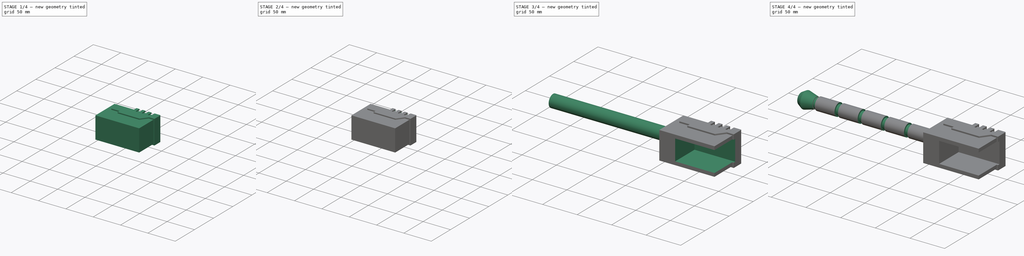
[diagram: build sequence overview — one tinted view per stage of 4, left to right]
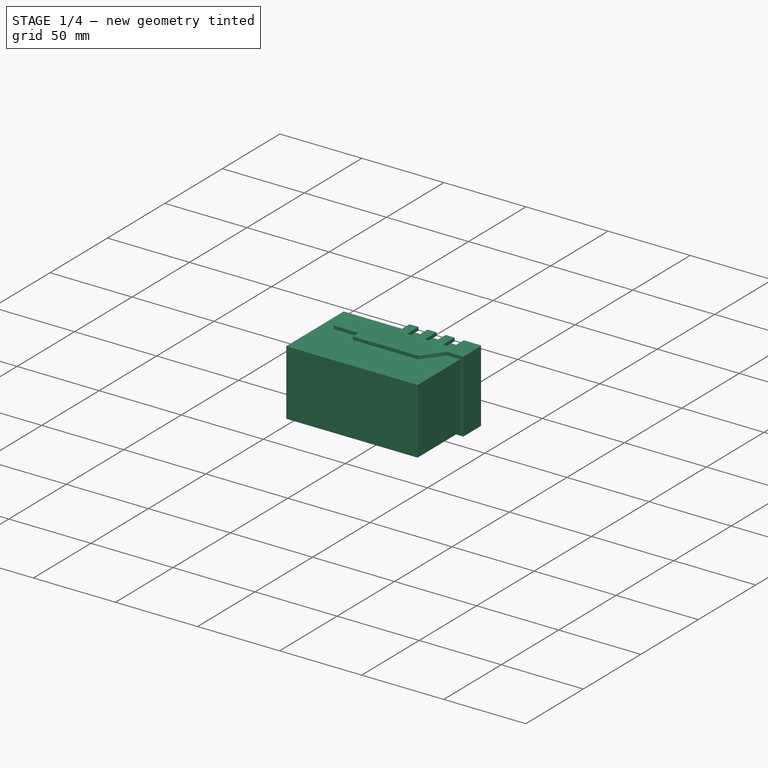
[diagram: stage 1 of 4 — iso view after this stage's code; geometry added in this stage tinted green]
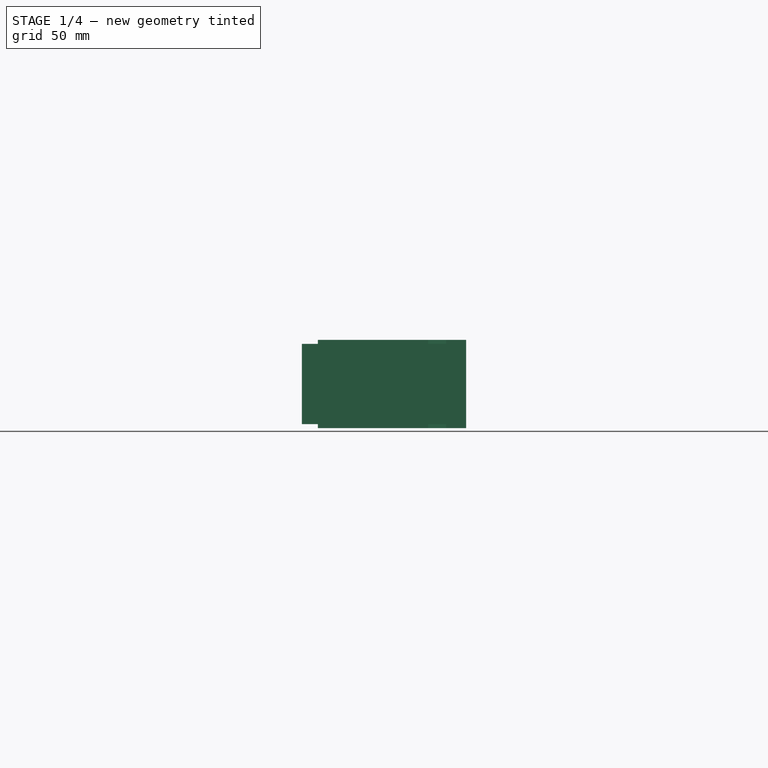
[diagram: stage 1 of 4 — front view after this stage's code; geometry added in this stage tinted green]
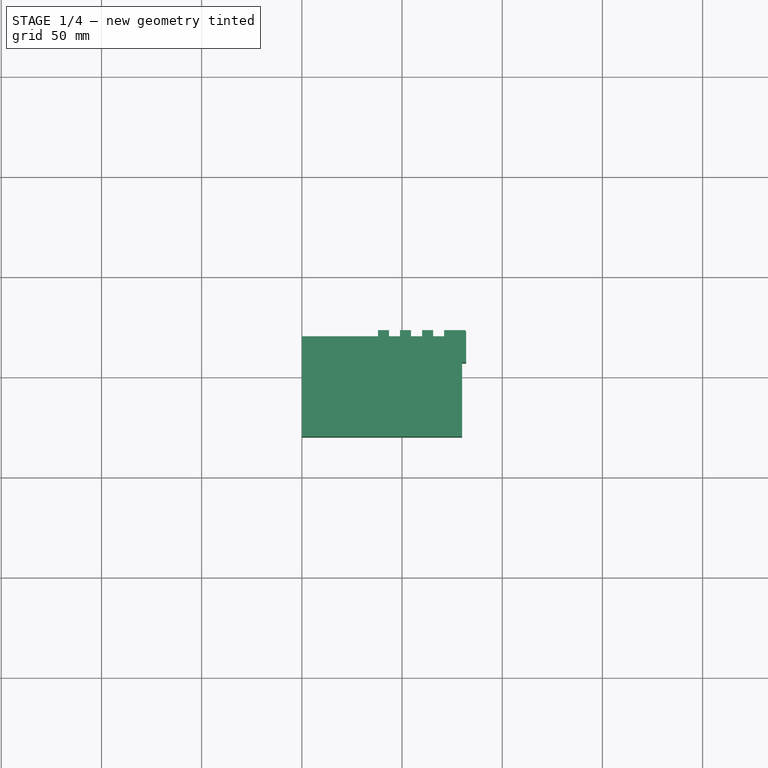
[diagram: stage 1 of 4 — top view after this stage's code; geometry added in this stage tinted green]
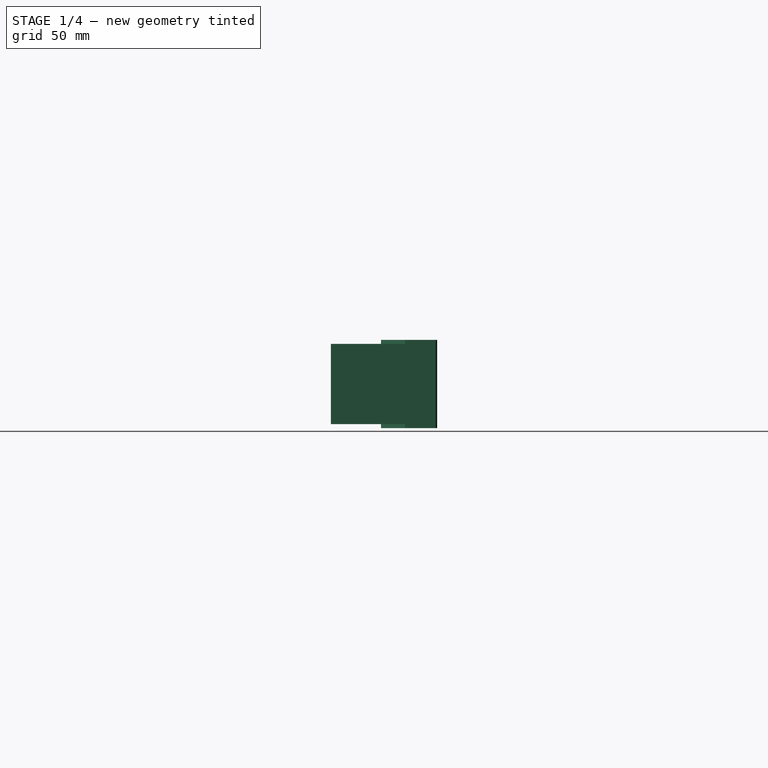
[diagram: stage 1 of 4 — right view after this stage's code; geometry added in this stage tinted green]
FCSTD DOCUMENT  (FreeCAD 1.0R39319 (Git))
Label: csw_attemp2
License: All rights reserved
LicenseURL: https://en.wikipedia.org/wiki/All_rights_reserved
objects: Sketcher::SketchObject×6, PartDesign::Pad×4, PartDesign::AdditiveLoft×4, PartDesign::Body×2, PartDesign::Revolution×1, PartDesign::Groove×1, PartDesign::LinearPattern×1, Spreadsheet::Sheet×1, PartDesign::Fillet×1, PartDesign::Mirrored×1, PartDesign::Pocket×1
note: 54 computed .brp shape members not serialized (recipe doc carries the construction recipe); baked Part::Feature solids carry a one-line shape summary decoded from their .brp

FEATURE [PartDesign::Body] Body  label="handle"
  AllowCompound = false
  Group = -> [Sketch,Revolution,Sketch001,Groove,LinearPattern,Sketch002,Pad,Pad001,Fillet]
  Origin = -> Origin
  Tip = -> Fillet
FEATURE [Sketcher::SketchObject] Sketch003
  ArcFitTolerance = 1e-06
  AttachmentSupport = -> [XY_Plane001]
  FullyConstrained = true
  MakeInternals = false
  MapMode = 5
  sketch-geometry (4):
    g0: LineSegment StartX=0 StartY=20 StartZ=0 EndX=0 EndY=-30 EndZ=0
    g1: LineSegment StartX=0 StartY=-30 StartZ=0 EndX=80 EndY=-30 EndZ=0
    g2: LineSegment StartX=80 StartY=-30 StartZ=0 EndX=80 EndY=20 EndZ=0
    g3: LineSegment StartX=80 StartY=20 StartZ=0 EndX=0 EndY=20 EndZ=0
  constraints (12):
    c: Coincident(g0,g1)
    c: Coincident(g1,g2)
    c: Coincident(g2,g3)
    c: Coincident(g3,g0)
    c: Vertical(g0)
    c: Vertical(g2)
    c: Horizontal(g1)
    c: Horizontal(g3)
    c: PointOnObject(g0,g-2)
    c: DistanceX(g3,g3) = 80
    c: DistanceY(g2,g2) = 50
    c: Distance(g-1,g0) = 20
FEATURE [PartDesign::Pad] Pad002
  Direction = (0,0,1)
  Length = 40
  Length2 = 10
  Midplane = true
  Profile = -> Sketch003
  ReferenceAxis = -> Sketch003 [N_Axis]
  Refine = true
  Suppressed = false
  Type = 0
FEATURE [Sketcher::SketchObject] Sketch004
  ArcFitTolerance = 1e-06
  AttachmentSupport = -> [Pad002]
  ExternalGeometry = -> [Pad002]
  FullyConstrained = true
  MakeInternals = false
  MapMode = 5
  Placement = pos=(0,0,20) rot=(0,0,1;0rad)
  sketch-geometry (24):
    g0: LineSegment StartX=8 StartY=0 StartZ=0 EndX=8 EndY=13 EndZ=0
    g1: LineSegment StartX=8 StartY=13 StartZ=0 EndX=38 EndY=13 EndZ=0
    g2: LineSegment StartX=38 StartY=13 StartZ=0 EndX=38 EndY=23 EndZ=0
    g3: LineSegment StartX=38 StartY=23 StartZ=0 EndX=43.5 EndY=23 EndZ=0
    g4: LineSegment StartX=43.5 StartY=23 StartZ=0 EndX=43.5 EndY=13 EndZ=0
    g5: LineSegment StartX=43.5 StartY=13 StartZ=0 EndX=49 EndY=13 EndZ=0
    g6: LineSegment StartX=49 StartY=13 StartZ=0 EndX=49 EndY=23 EndZ=0
    g7: LineSegment StartX=49 StartY=23 StartZ=0 EndX=54.5 EndY=23 EndZ=0
    g8: LineSegment StartX=54.5 StartY=23 StartZ=0 EndX=54.5 EndY=13 EndZ=0
    g9: LineSegment StartX=54.5 StartY=13 StartZ=0 EndX=60 EndY=13 EndZ=0
    g10: LineSegment StartX=60 StartY=13 StartZ=0 EndX=60 EndY=23 EndZ=0
    g11: LineSegment StartX=60 StartY=23 StartZ=0 EndX=65.5 EndY=23 EndZ=0
    g12: LineSegment StartX=65.5 StartY=23 StartZ=0 EndX=65.5 EndY=13 EndZ=0
    g13: LineSegment StartX=65.5 StartY=13 StartZ=0 EndX=71 EndY=13 EndZ=0
    g14: LineSegment StartX=71 StartY=13 StartZ=0 EndX=71 EndY=23 EndZ=0
    g15: LineSegment StartX=71 StartY=23 StartZ=0 EndX=81 EndY=23 EndZ=0
    g16: LineSegment StartX=82 StartY=22 StartZ=0 EndX=82 EndY=7 EndZ=0
    g17: LineSegment StartX=82 StartY=7 StartZ=0 EndX=72 EndY=7 EndZ=0
    g18: LineSegment StartX=72 StartY=7 StartZ=0 EndX=63 EndY=-5 EndZ=0
    g19: LineSegment StartX=63 StartY=-5 StartZ=0 EndX=23 EndY=-5 EndZ=0
    g20: LineSegment StartX=23 StartY=-5 StartZ=0 EndX=23 EndY=0 EndZ=0
    g21: LineSegment StartX=23 StartY=0 StartZ=0 EndX=8 EndY=0 EndZ=0
    g22: ArcOfCircle CenterX=81 CenterY=22 CenterZ=0 NormalX=0 NormalY=0 NormalZ=1 AngleXU=0 Radius=1 StartAngle=-9e-16 EndAngle=1.5708
    g23: GeomPoint [constr] X=82 Y=23 Z=0
  constraints (70):
    c: PointOnObject(g0,g-1)
    c: Vertical(g0)
    c: Coincident(g0,g1)
    c: Horizontal(g1)
    c: Coincident(g1,g2)
    c: Vertical(g2)
    c: Coincident(g2,g3)
    c: Horizontal(g3)
    c: Coincident(g3,g4)
    c: Vertical(g4)
    c: Coincident(g4,g5)
    c: Coincident(g5,g6)
    c: Vertical(g6)
    c: Coincident(g6,g7)
    c: Horizontal(g7)
    c: Coincident(g7,g8)
    c: Coincident(g8,g9)
    c: Horizontal(g9)
    c: Coincident(g9,g10)
    c: Vertical(g10)
    c: Coincident(g10,g11)
    c: Horizontal(g11)
    c: Coincident(g11,g12)
    c: Coincident(g12,g13)
    c: Horizontal(g13)
    c: Coincident(g13,g14)
    c: Coincident(g14,g15)
    c: Horizontal(g15)
    c: Vertical(g16)
    c: Coincident(g16,g17)
    c: Horizontal(g17)
    c: Coincident(g17,g18)
    c: Coincident(g18,g19)
    c: Horizontal(g19)
    c: Coincident(g19,g20)
    c: PointOnObject(g20,g-1)
    c: Vertical(g20)
    c: Coincident(g20,g21)
    c: Coincident(g21,g0)
    c: Vertical(g8)
    c: Vertical(g12)
    c: Vertical(g14)
    c: Horizontal(g5)
    c: Equal(g2,g4)
    c: Equal(g4,g6)
    c: Equal(g6,g8)
    c: Equal(g8,g10)
    c: Equal(g10,g12)
    c: Equal(g12,g14)
    c: DistanceY(g2,g2) = 10
    c: DistanceX(g3,g3) = 5.5
    c: Equal(g3,g5)
    c: Equal(g5,g7)
    c: Equal(g7,g9)
    c: Equal(g9,g11)
    c: Equal(g11,g13)
    c: DistanceX(g-3,g23) = 2
    c: Distance(g15,g-3) = 3
    c: DistanceY(g16,g-3) = 13
    c: DistanceX(g17,g17) = 10
    c: DistanceY(g18,g-3) = 25
    c: Distance(g18,g18) = 15
    c: DistanceX(g19,g19) = 40
    c: DistanceX(g21,g21) = 15
    c: DistanceX(g1,g1) = 30
    c: PointOnObject(g23,g15)
    c: PointOnObject(g23,g16)
    c: Tangent(g15,g22) = 1.5708
    c: Tangent(g16,g22) = 1.5708
    c: Radius(g22) = 1
FEATURE [PartDesign::Pad] Pad003
  BaseFeature = -> Pad002
  Direction = (0,0,1)
  Length = 2
  Length2 = 10
  Profile = -> Sketch004
  ReferenceAxis = -> Sketch004 [N_Axis]
  Refine = true
  Suppressed = false
  Type = 0
FEATURE [PartDesign::Mirrored] Mirrored
  BaseFeature = -> Pad003
  MirrorPlane = -> XY_Plane001
  Originals = -> [Pad003]
  Refine = true
  Suppressed = false
  TransformMode = 0
FEATURE [PartDesign::AdditiveLoft] AdditiveLoft
  BaseFeature = -> Mirrored
  Closed = false
  Profile = -> Mirrored [Face7]
  Refine = true
  Ruled = false
  Sections = -> [Mirrored]
  Suppressed = false
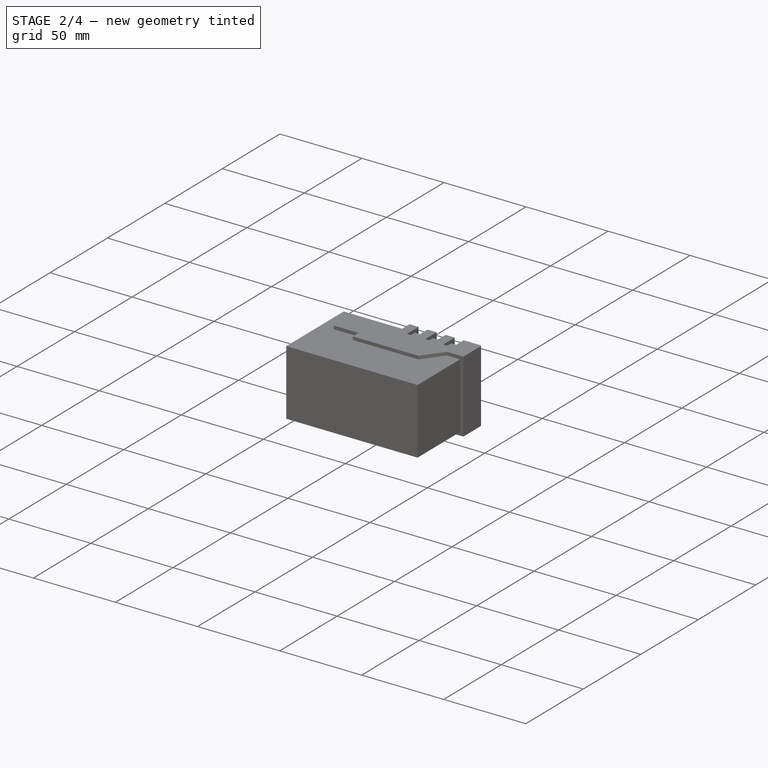
[diagram: stage 2 of 4 — iso view after this stage's code; geometry added in this stage tinted green]
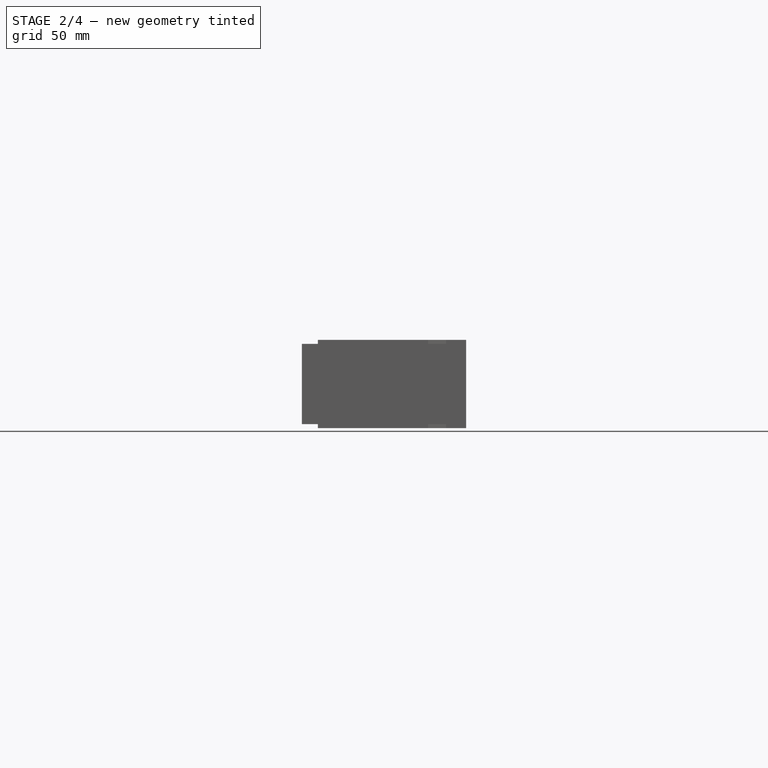
[diagram: stage 2 of 4 — front view after this stage's code; geometry added in this stage tinted green]
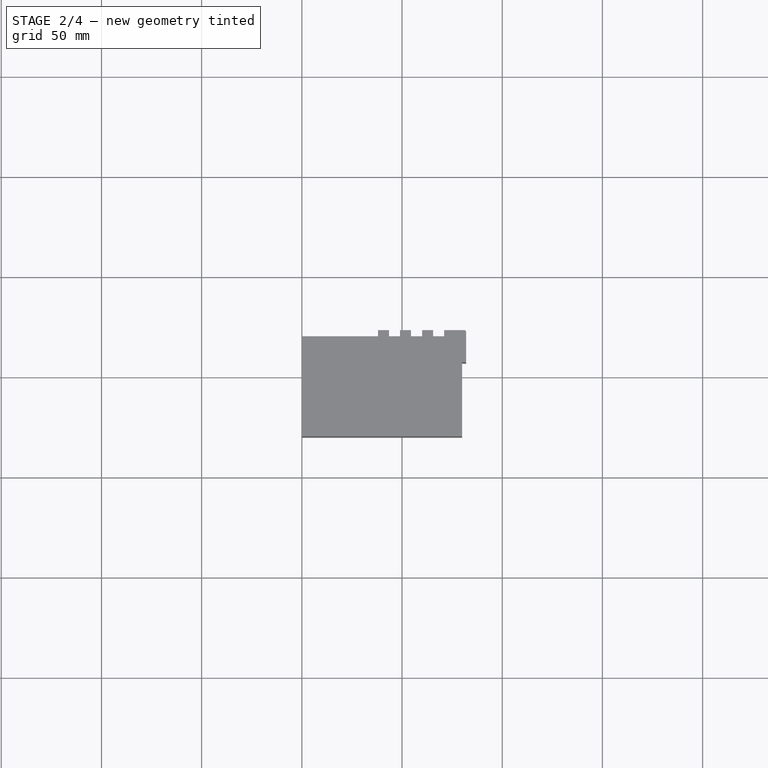
[diagram: stage 2 of 4 — top view after this stage's code; geometry added in this stage tinted green]
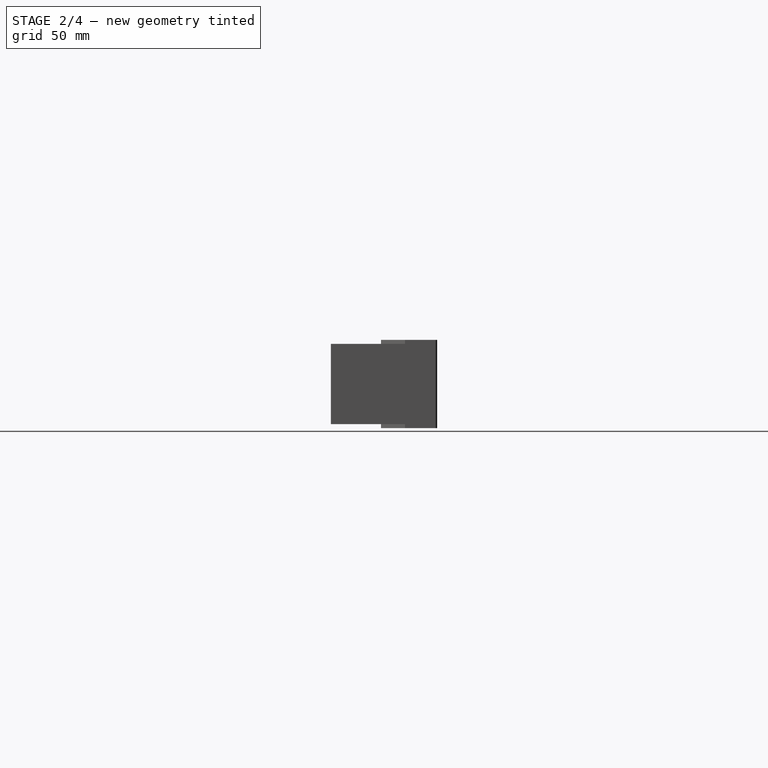
[diagram: stage 2 of 4 — right view after this stage's code; geometry added in this stage tinted green]
FEATURE [PartDesign::AdditiveLoft] AdditiveLoft001
  BaseFeature = -> AdditiveLoft
  Closed = false
  Profile = -> AdditiveLoft [Face16]
  Refine = true
  Ruled = false
  Sections = -> [AdditiveLoft]
  Suppressed = false
FEATURE [PartDesign::AdditiveLoft] AdditiveLoft002
  BaseFeature = -> AdditiveLoft001
  Closed = false
  Profile = -> AdditiveLoft001 [Face12]
  Refine = true
  Ruled = false
  Sections = -> [AdditiveLoft001]
  Suppressed = false
FEATURE [PartDesign::AdditiveLoft] AdditiveLoft003
  BaseFeature = -> AdditiveLoft002
  Closed = false
  Profile = -> AdditiveLoft002 [Face8]
  Refine = true
  Ruled = false
  Sections = -> [AdditiveLoft002]
  Suppressed = false
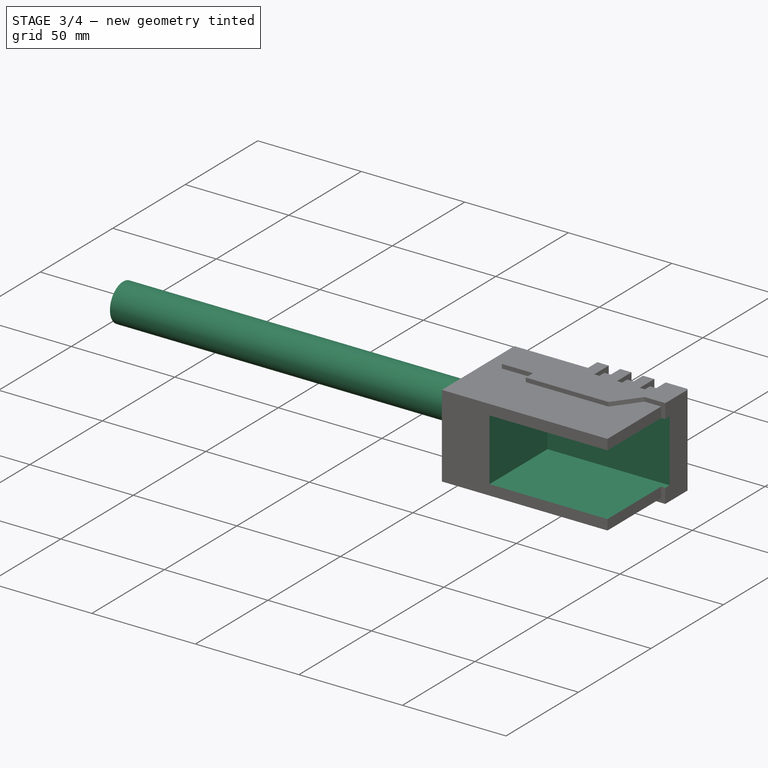
[diagram: stage 3 of 4 — iso view after this stage's code; geometry added in this stage tinted green]
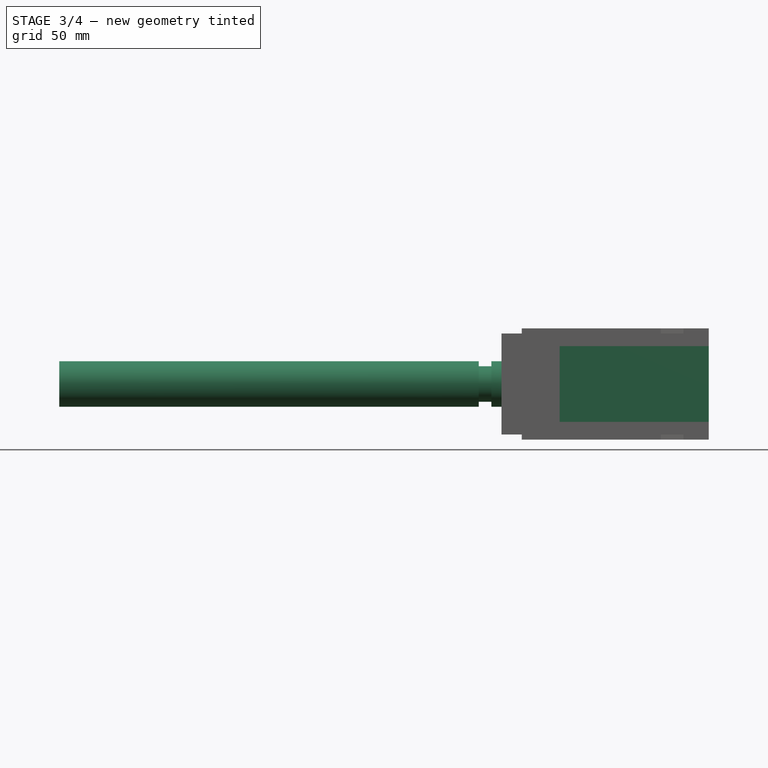
[diagram: stage 3 of 4 — front view after this stage's code; geometry added in this stage tinted green]
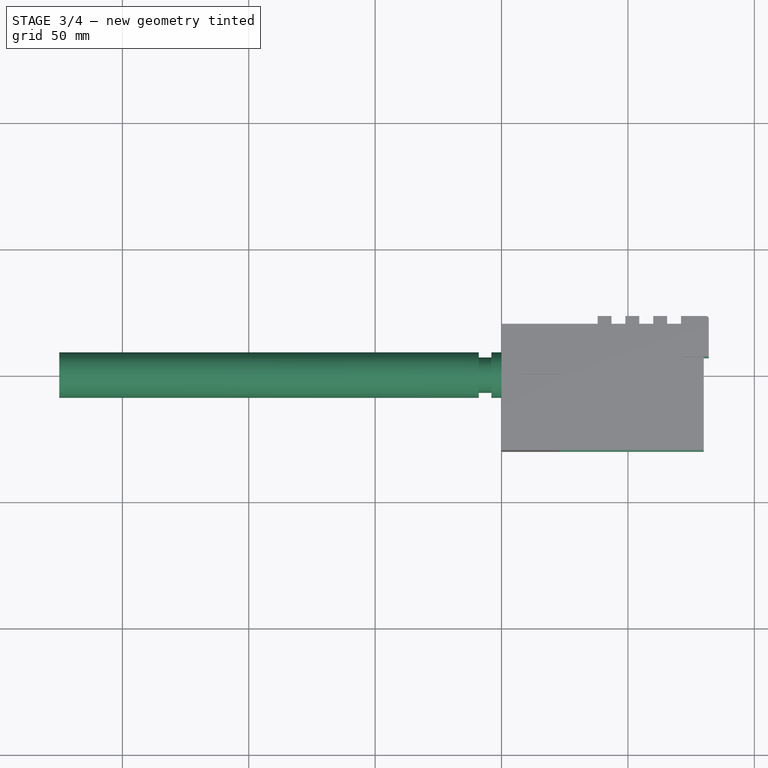
[diagram: stage 3 of 4 — top view after this stage's code; geometry added in this stage tinted green]
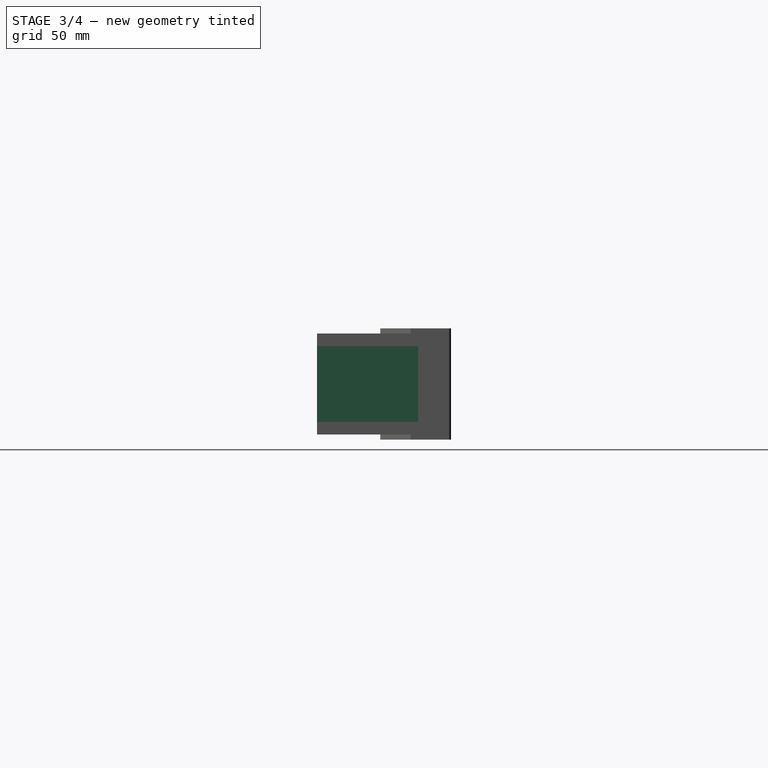
[diagram: stage 3 of 4 — right view after this stage's code; geometry added in this stage tinted green]
FEATURE [Sketcher::SketchObject] Sketch
  ArcFitTolerance = 1e-06
  AttachmentSupport = -> [XY_Plane]
  FullyConstrained = true
  MakeInternals = false
  MapMode = 5
  expr: .Constraints.handle_length = <<Spreadsheet>>.handle_length
  expr: .Constraints.handle_radius = <<Spreadsheet>>.handle_radius
  sketch-geometry (4):
    g0: LineSegment StartX=0 StartY=0 StartZ=0 EndX=0 EndY=9 EndZ=0
    g1: LineSegment StartX=0 StartY=9 StartZ=0 EndX=-175 EndY=9 EndZ=0
    g2: LineSegment StartX=-175 StartY=9 StartZ=0 EndX=-175 EndY=0 EndZ=0
    g3: LineSegment StartX=-175 StartY=0 StartZ=0 EndX=0 EndY=0 EndZ=0
  constraints (11):
    c: Coincident(g0,g1)
    c: Coincident(g1,g2)
    c: Coincident(g2,g3)
    c: Coincident(g3,g0)
    c: Vertical(g0)
    c: Vertical(g2)
    c: Horizontal(g1)
    c: Horizontal(g3)
    c: Coincident(g0,g-1)
    c: DistanceX(g1,g1) = 175  'handle_length'
    c: DistanceY(g0,g0) = 9  'handle_radius'
FEATURE [PartDesign::Revolution] Revolution
  Angle = 360
  Angle2 = 60
  Axis = (1,0,0)
  Base = (0,0,0)
  Profile = -> Sketch
  ReferenceAxis = -> Sketch [H_Axis]
  Refine = true
  Suppressed = false
  Type = 0
FEATURE [Sketcher::SketchObject] Sketch001
  ArcFitTolerance = 1e-06
  AttachmentSupport = -> [XZ_Plane]
  FullyConstrained = true
  MakeInternals = false
  MapMode = 5
  Placement = pos=(0,0,0) rot=(1,0,0;1.5708rad)
  expr: Constraints[10] = <<Spreadsheet>>.handle_groove_height
  expr: Constraints[11] = <<Spreadsheet>>.handle_radius - <<Spreadsheet>>.handle_groove_height
  expr: Constraints[8] = <<Spreadsheet>>.handle_grove_from_base_x
  expr: Constraints[9] = <<Spreadsheet>>.handle_groove_width
  sketch-geometry (4):
    g0: LineSegment StartX=-9.02778 StartY=9 StartZ=0 EndX=-9.02778 EndY=7 EndZ=0
    g1: LineSegment StartX=-9.02778 StartY=7 StartZ=0 EndX=-4.02778 EndY=7 EndZ=0
    g2: LineSegment StartX=-4.02778 StartY=7 StartZ=0 EndX=-4.02778 EndY=9 EndZ=0
    g3: LineSegment StartX=-4.02778 StartY=9 StartZ=0 EndX=-9.02778 EndY=9 EndZ=0
  constraints (12):
    c: Coincident(g0,g1)
    c: Coincident(g1,g2)
    c: Coincident(g2,g3)
    c: Coincident(g3,g0)
    c: Vertical(g0)
    c: Vertical(g2)
    c: Horizontal(g1)
    c: Horizontal(g3)
    c: DistanceX(g1,g-1) = 4.02778
    c: DistanceX(g3,g3) = 5
    c: DistanceY(g2,g2) = 2
    c: DistanceY(g-1,g1) = 7
FEATURE [PartDesign::Groove] Groove
  Angle = 360
  Angle2 = 60
  Axis = (1,0,0)
  Base = (0,0,0)
  BaseFeature = -> Revolution
  Profile = -> Sketch001
  ReferenceAxis = -> Sketch001 [H_Axis]
  Refine = true
  Reversed = true
  Suppressed = false
  Type = 0
FEATURE [Sketcher::SketchObject] Sketch005
  ArcFitTolerance = 1e-06
  AttachmentSupport = -> [AdditiveLoft003]
  ExternalGeometry = -> [AdditiveLoft003]
  FullyConstrained = true
  MakeInternals = false
  MapMode = 5
  Placement = pos=(0,-30,0) rot=(1,0,0;1.5708rad)
  sketch-geometry (5):
    g0: LineSegment [constr] StartX=23 StartY=20 StartZ=0 EndX=23 EndY=-20 EndZ=0
    g1: LineSegment StartX=23 StartY=15 StartZ=0 EndX=23 EndY=-15 EndZ=0
    g2: LineSegment StartX=23 StartY=-15 StartZ=0 EndX=88 EndY=-15 EndZ=0
    g3: LineSegment StartX=88 StartY=-15 StartZ=0 EndX=88 EndY=15 EndZ=0
    g4: LineSegment StartX=88 StartY=15 StartZ=0 EndX=23 EndY=15 EndZ=0
  constraints (14):
    c: Coincident(g0,g-3)
    c: Coincident(g0,g-4)
    c: Coincident(g1,g2)
    c: Coincident(g2,g3)
    c: Coincident(g3,g4)
    c: Coincident(g4,g1)
    c: Vertical(g1)
    c: Vertical(g3)
    c: Horizontal(g2)
    c: Horizontal(g4)
    c: PointOnObject(g1,g0)
    c: DistanceX(g4,g4) = 65
    c: DistanceY(g1,g1) = 30
    c: DistanceY(g-1,g1) = 15
FEATURE [PartDesign::Pocket] Pocket
  BaseFeature = -> AdditiveLoft003
  Direction = (0,1,-2e-16)
  Length = 40
  Length2 = 5
  Profile = -> Sketch005
  ReferenceAxis = -> Sketch005 [N_Axis]
  Refine = true
  Suppressed = false
  Type = 0
FEATURE [PartDesign::Body] Body001  label="base"
  AllowCompound = false
  Group = -> [Sketch003,Pad002,Sketch004,Pad003,Mirrored,AdditiveLoft,AdditiveLoft001,AdditiveLoft002,AdditiveLoft003,Sketch005,Pocket]
  Origin = -> Origin001
  Tip = -> Pocket
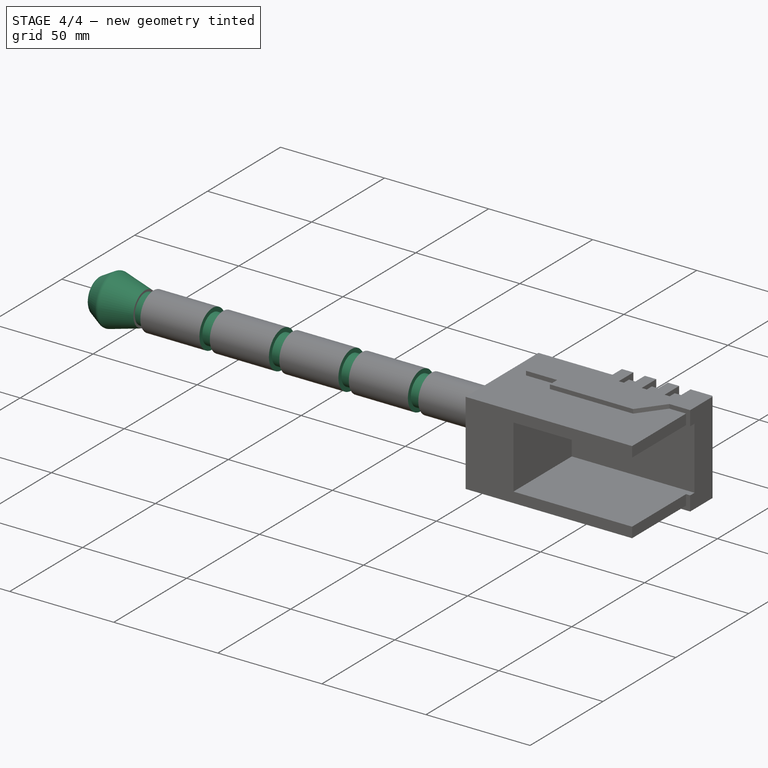
[diagram: stage 4 of 4 — iso view after this stage's code; geometry added in this stage tinted green]
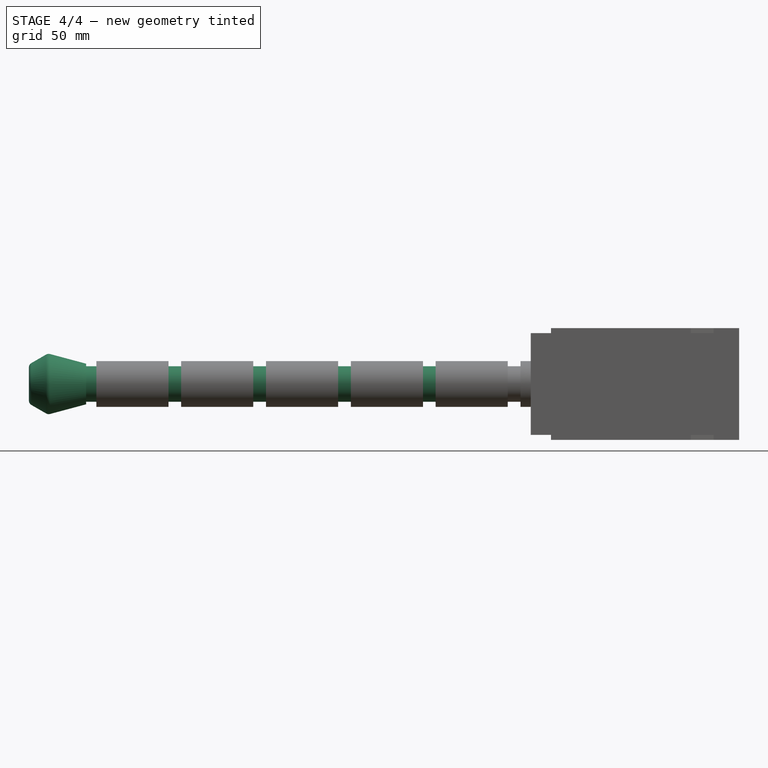
[diagram: stage 4 of 4 — front view after this stage's code; geometry added in this stage tinted green]
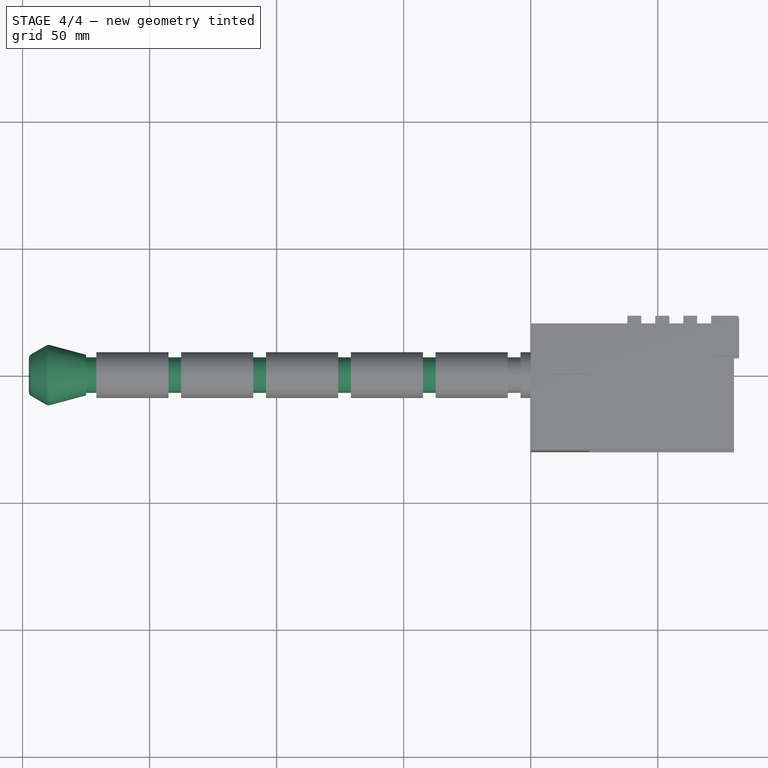
[diagram: stage 4 of 4 — top view after this stage's code; geometry added in this stage tinted green]
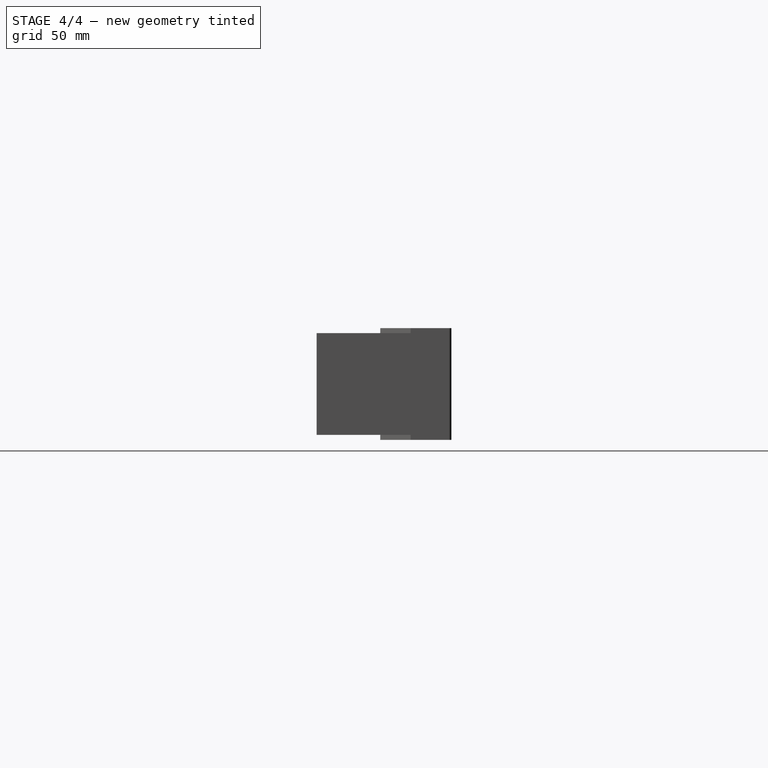
[diagram: stage 4 of 4 — right view after this stage's code; geometry added in this stage tinted green]
FEATURE [PartDesign::LinearPattern] LinearPattern
  BaseFeature = -> Groove
  Direction = -> X_Axis
  Length = 166.944
  Mode = 0
  Occurrences = 6
  Offset = 33.3889
  Originals = -> [Groove]
  Refine = true
  Reversed = true
  Suppressed = false
  TransformMode = 0
  expr: Length = <<Spreadsheet>>.handle_length - <<Spreadsheet>>.handle_grove_from_base_x * 2
  expr: Occurrences = <<Spreadsheet>>.num_of_grooves
FEATURE [Spreadsheet::Sheet] Spreadsheet
  cells = A1='handle_length; B1(handle_length)==175 mm; A2='handle_radius; B2(handle_radius)==9 mm; A3='handle_groove_height; B3(handle_groove_height)==2 mm; A4='handle_groove_width; B4(handle_groove_width)==5 mm; A5='num_of_grooves; B5(num_of_grooves)=6; A6='handle_grove_from_base_x; B6(handle_grove_from_base_x)==(handle_length / num_of_grooves - handle_groove_width) / num_of_grooves; A7='pommel_base_diameter; B7(pommel_base_diameter)==16 mm; A8='pommel_tapper_to_center; B8(pommel_tapper_to_center)==15 °; A9='pommel_midway; B9(pommel_midway)==15 mm; A10='pommel_fillet; B10(pommel_fillet)==2 mm
FEATURE [Sketcher::SketchObject] Sketch002
  ArcFitTolerance = 1e-06
  AttachmentSupport = -> [LinearPattern]
  FullyConstrained = true
  MakeInternals = false
  MapMode = 5
  Placement = pos=(-175,0,0) rot=(0.57735,-0.57735,-0.57735;2.0944rad)
  expr: Constraints[1] = <<Spreadsheet>>.pommel_base_diameter
  sketch-geometry (1):
    g0: Circle CenterX=0 CenterY=0 CenterZ=0 NormalX=0 NormalY=0 NormalZ=1 AngleXU=0 Radius=8
  constraints (2):
    c: Coincident(g0,g-1)
    c: Diameter(g0) = 16
FEATURE [PartDesign::Pad] Pad
  BaseFeature = -> LinearPattern
  Direction = (-1,0,0)
  Length = 15
  Length2 = 10
  Profile = -> Sketch002
  ReferenceAxis = -> Sketch002 [N_Axis]
  Refine = true
  Suppressed = false
  TaperAngle = 15
  Type = 0
  expr: Length = <<Spreadsheet>>.pommel_midway
  expr: TaperAngle = <<Spreadsheet>>.pommel_tapper_to_center
FEATURE [PartDesign::Pad] Pad001
  BaseFeature = -> Pad
  Direction = (-1,0,0)
  Length = 7.5
  Length2 = 10
  Profile = -> Pad [Face27]
  Refine = true
  Suppressed = false
  TaperAngle = -30
  Type = 0
  expr: Length = <<Spreadsheet>>.pommel_midway / 2
  expr: TaperAngle = -<<Spreadsheet>>.pommel_tapper_to_center * 2
FEATURE [PartDesign::Fillet] Fillet
  Base = -> Pad001 [Edge52,Edge50]
  BaseFeature = -> Pad001
  Radius = 2
  Refine = true
  SupportTransform = false
  Suppressed = false
  UseAllEdges = false
  expr: Radius = <<Spreadsheet>>.pommel_fillet
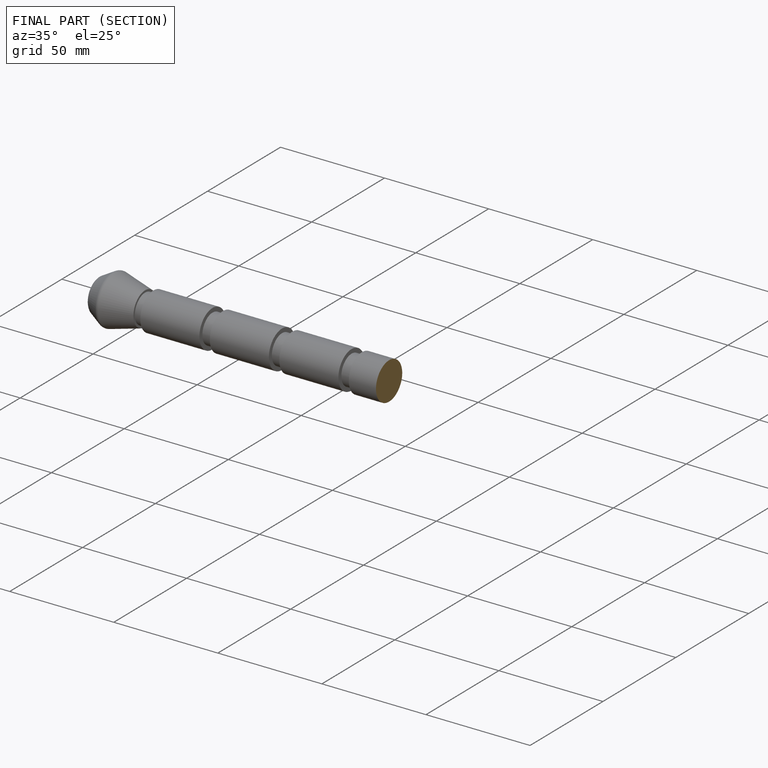
[diagram: finished part — half-section view (interior)]
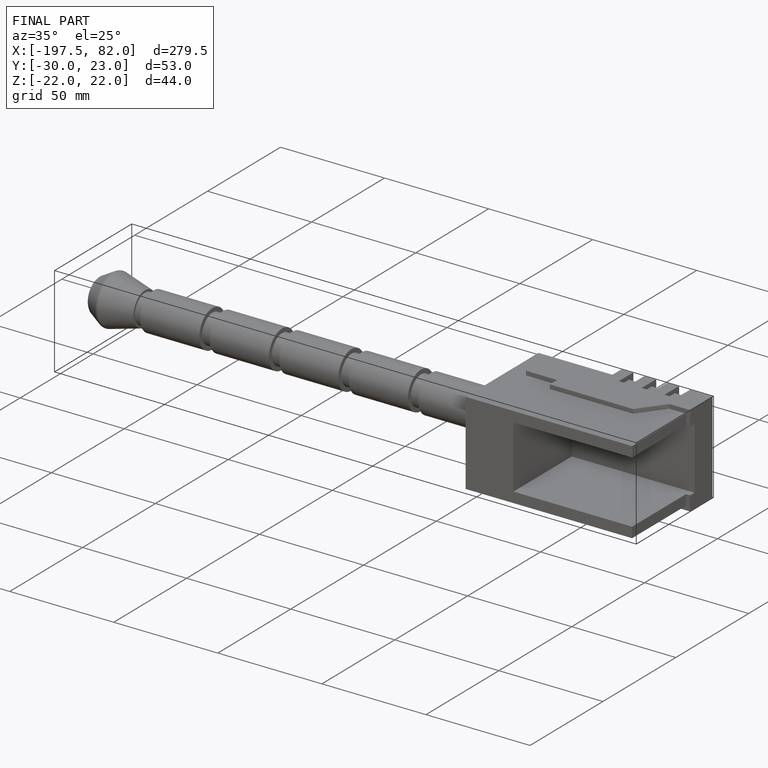
[diagram: finished part — iso view with bounding-box wireframe]
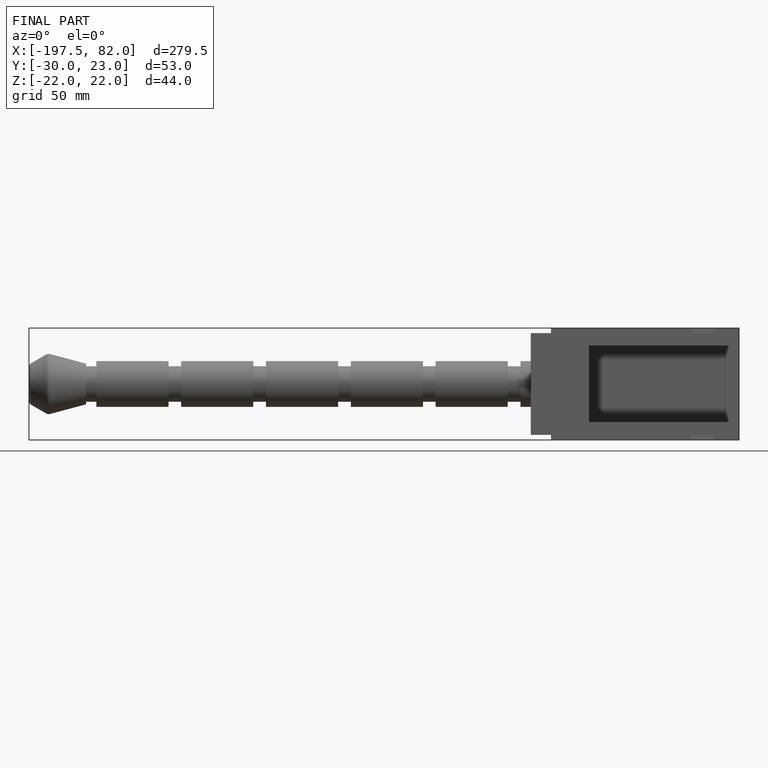
[diagram: finished part — front view with bounding-box wireframe]
